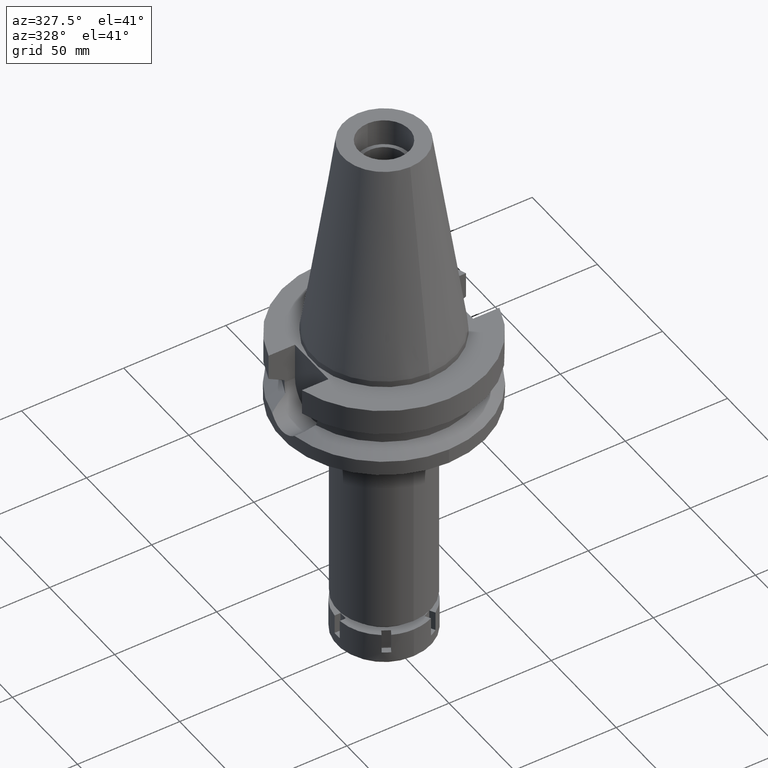
[diagram: clean part render]
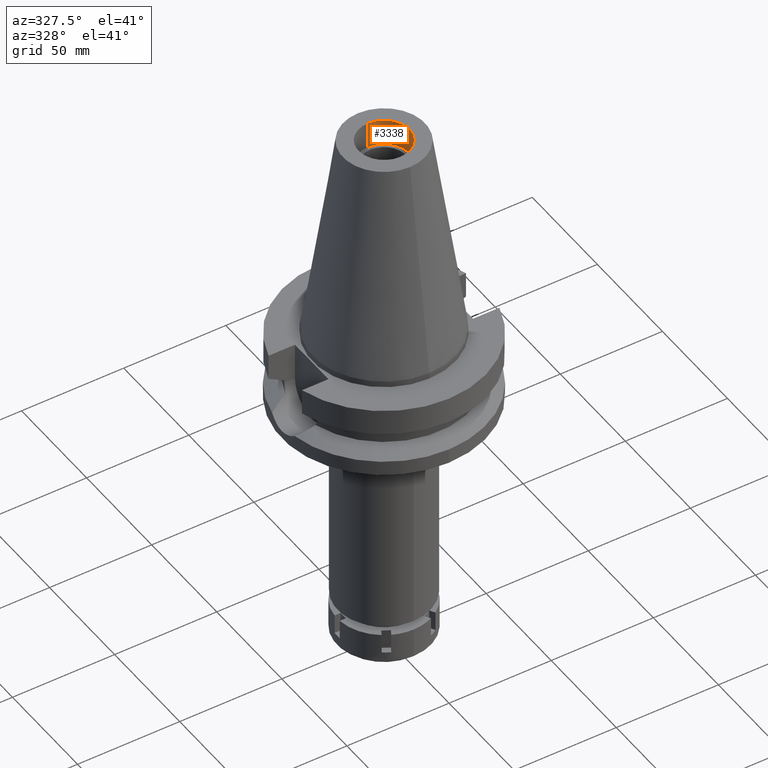
[diagram: same view with one face highlighted and labeled with its STEP entity id]
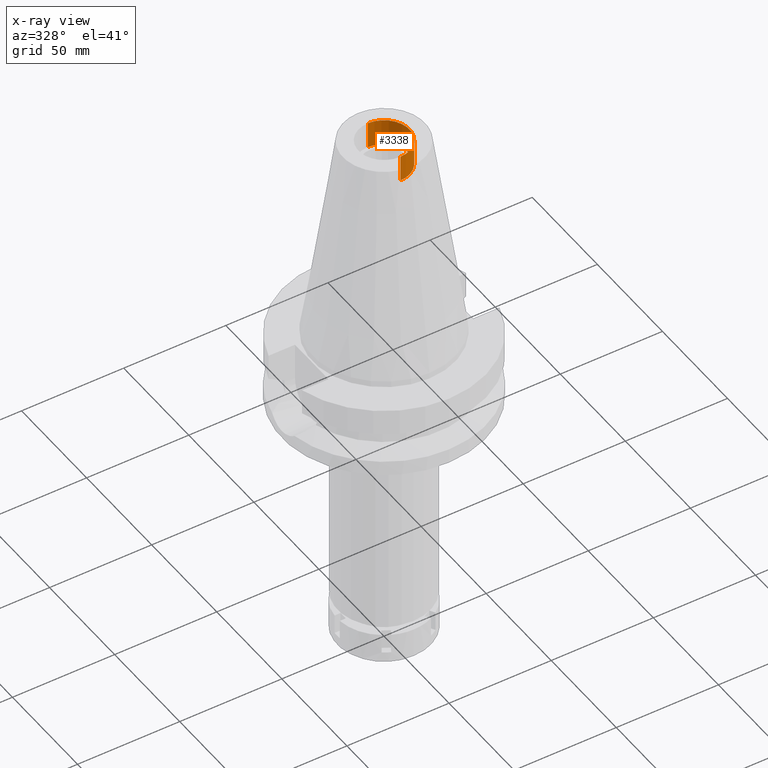
[diagram: x-ray of the same camera — body ghosted, the highlighted face saturated]
A machine part, auxiliary view. The second image highlights one B-rep face of the part: STEP entity #3338.
The next image is the same camera in x-ray: the body ghosted, the highlighted face saturated — about 0% of this face is hidden behind the body in this view.
In plain terms, the highlighted cylindrical surface (edge-blend (fillet) strip) has radius 12.5 mm, axis along (0, 0, -1).
Its self-contained STEP definition (entity closure, byte-faithful):
#77 = VERTEX_POINT ( 'NONE', #1669 ) ;
#81 = EDGE_CURVE ( 'NONE', #3691, #817, #3036, .T. ) ;
#299 = CARTESIAN_POINT ( 'NONE',  ( 0.0000000000000000000, 2.629806536488999751E-14, 114.7399999999999949 ) ) ;
#391 = DIRECTION ( 'NONE',  ( 0.0000000000000000000, -1.000000000000000000, 0.0000000000000000000 ) ) ;
#541 = ORIENTED_EDGE ( 'NONE', *, *, #2006, .F. ) ;
#584 = FACE_OUTER_BOUND ( 'NONE', #2122, .T. ) ;
#809 = AXIS2_PLACEMENT_3D ( 'NONE', #1522, #1503, #2037 ) ;
#817 = VERTEX_POINT ( 'NONE', #2145 ) ;
#944 = LINE ( 'NONE', #2599, #1531 ) ;
#1134 = CARTESIAN_POINT ( 'NONE',  ( 0.0000000000000000000, -12.50000000000000000, 88.79999999999999716 ) ) ;
#1437 = DIRECTION ( 'NONE',  ( 0.0000000000000000000, 0.0000000000000000000, -1.000000000000000000 ) ) ;
#1503 = DIRECTION ( 'NONE',  ( 0.0000000000000000000, 0.0000000000000000000, 1.000000000000000000 ) ) ;
#1522 = CARTESIAN_POINT ( 'NONE',  ( 0.0000000000000000000, 2.629806536488999751E-14, 101.7999999999999972 ) ) ;
#1531 = VECTOR ( 'NONE', #3234, 1000.000000000000000 ) ;
#1669 = CARTESIAN_POINT ( 'NONE',  ( 0.0000000000000000000, 12.50000000000000000, 101.7999999999999972 ) ) ;
#1723 = CARTESIAN_POINT ( 'NONE',  ( 0.0000000000000000000, -12.50000000000000000, 101.7999999999999972 ) ) ;
#2006 = EDGE_CURVE ( 'NONE', #3691, #77, #944, .T. ) ;
#2037 = DIRECTION ( 'NONE',  ( 0.0000000000000000000, -1.000000000000000000, 0.0000000000000000000 ) ) ;
#2122 = EDGE_LOOP ( 'NONE', ( #2405, #2248, #3359, #541 ) ) ;
#2145 = CARTESIAN_POINT ( 'NONE',  ( 0.0000000000000000000, -12.50000000000000000, 88.79999999999999716 ) ) ;
#2182 = AXIS2_PLACEMENT_3D ( 'NONE', #299, #1437, #391 ) ;
#2248 = ORIENTED_EDGE ( 'NONE', *, *, #3335, .T. ) ;
#2266 = DIRECTION ( 'NONE',  ( 0.0000000000000000000, 0.0000000000000000000, -1.000000000000000000 ) ) ;
#2352 = EDGE_CURVE ( 'NONE', #2360, #77, #2663, .T. ) ;
#2360 = VERTEX_POINT ( 'NONE', #1723 ) ;
#2405 = ORIENTED_EDGE ( 'NONE', *, *, #81, .T. ) ;
#2596 = VECTOR ( 'NONE', #3424, 1000.000000000000000 ) ;
#2599 = CARTESIAN_POINT ( 'NONE',  ( 0.0000000000000000000, 12.50000000000000000, 88.79999999999999716 ) ) ;
#2663 = CIRCLE ( 'NONE', #809, 12.50000000000000000 ) ;
#2718 = CARTESIAN_POINT ( 'NONE',  ( 0.0000000000000000000, 12.50000000000000000, 88.79999999999999716 ) ) ;
#2867 = CYLINDRICAL_SURFACE ( 'NONE', #2182, 12.50000000000000000 ) ;
#3036 = CIRCLE ( 'NONE', #3681, 12.50000000000000000 ) ;
#3144 = LINE ( 'NONE', #1134, #2596 ) ;
#3234 = DIRECTION ( 'NONE',  ( 0.0000000000000000000, 0.0000000000000000000, 1.000000000000000000 ) ) ;
#3335 = EDGE_CURVE ( 'NONE', #817, #2360, #3144, .T. ) ;
#3338 = ADVANCED_FACE ( 'NONE', ( #584 ), #2867, .F. ) ;
#3359 = ORIENTED_EDGE ( 'NONE', *, *, #2352, .T. ) ;
#3404 = DIRECTION ( 'NONE',  ( 0.0000000000000000000, 1.000000000000000000, 0.0000000000000000000 ) ) ;
#3424 = DIRECTION ( 'NONE',  ( 0.0000000000000000000, 0.0000000000000000000, 1.000000000000000000 ) ) ;
#3681 = AXIS2_PLACEMENT_3D ( 'NONE', #3692, #2266, #3404 ) ;
#3691 = VERTEX_POINT ( 'NONE', #2718 ) ;
#3692 = CARTESIAN_POINT ( 'NONE',  ( 0.0000000000000000000, 2.629806536488999751E-14, 88.79999999999999716 ) ) ;